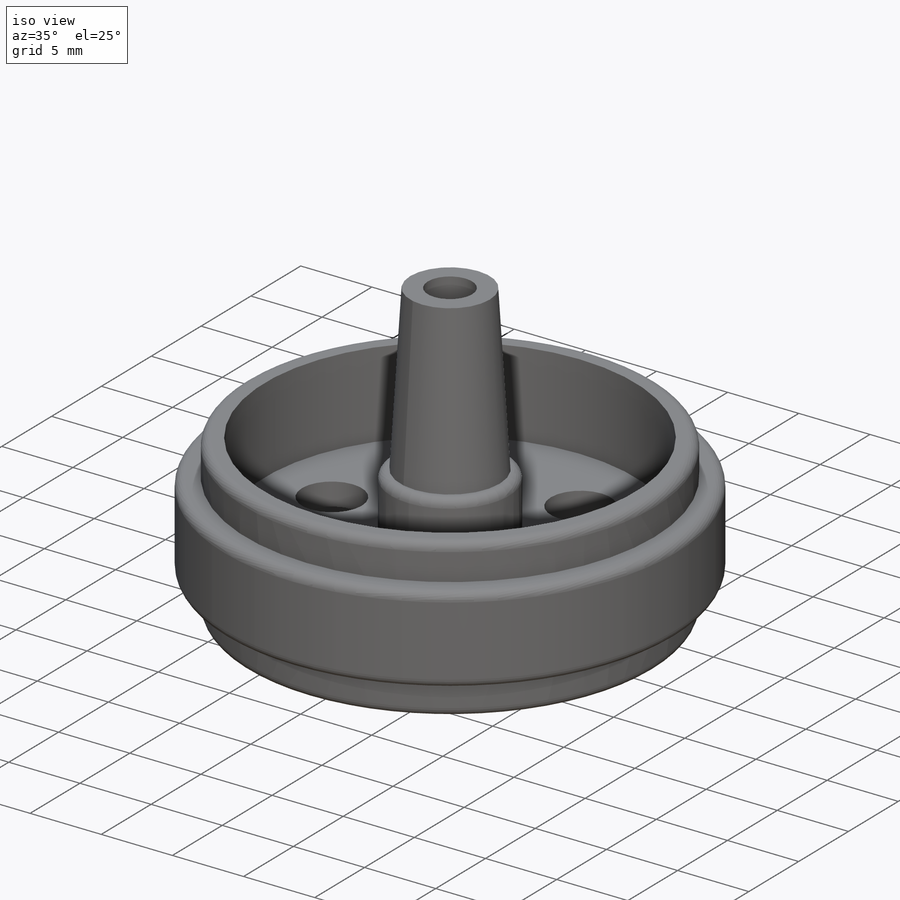
[diagram: iso view]
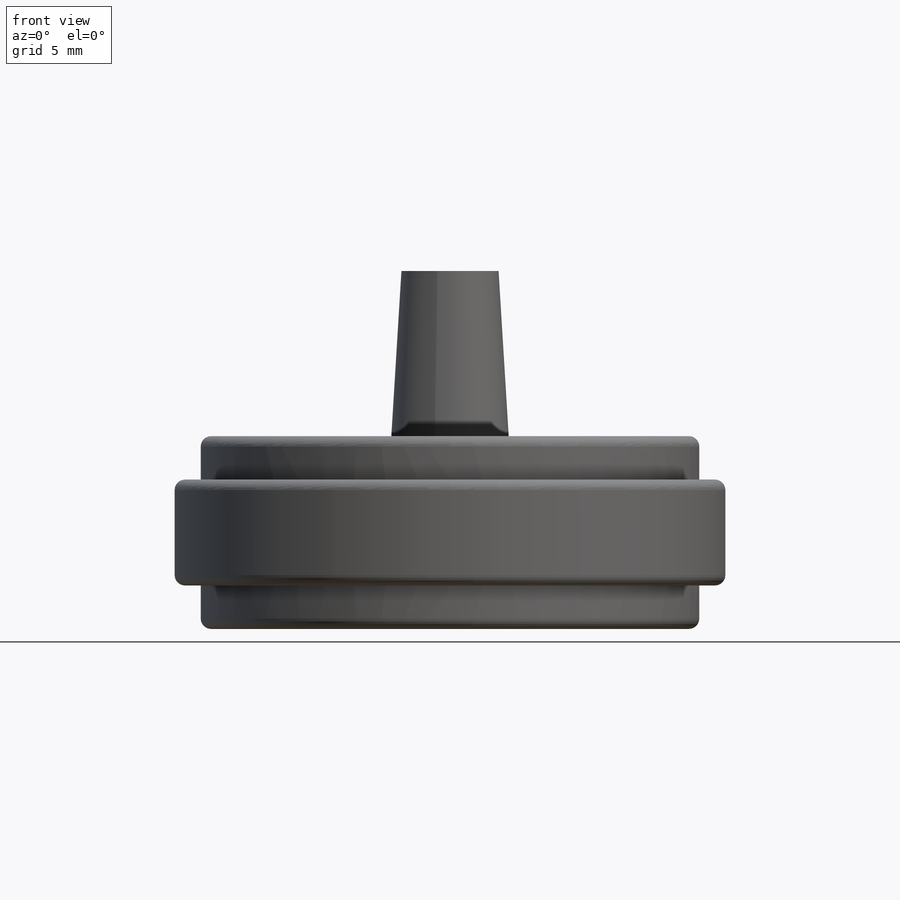
[diagram: front view]
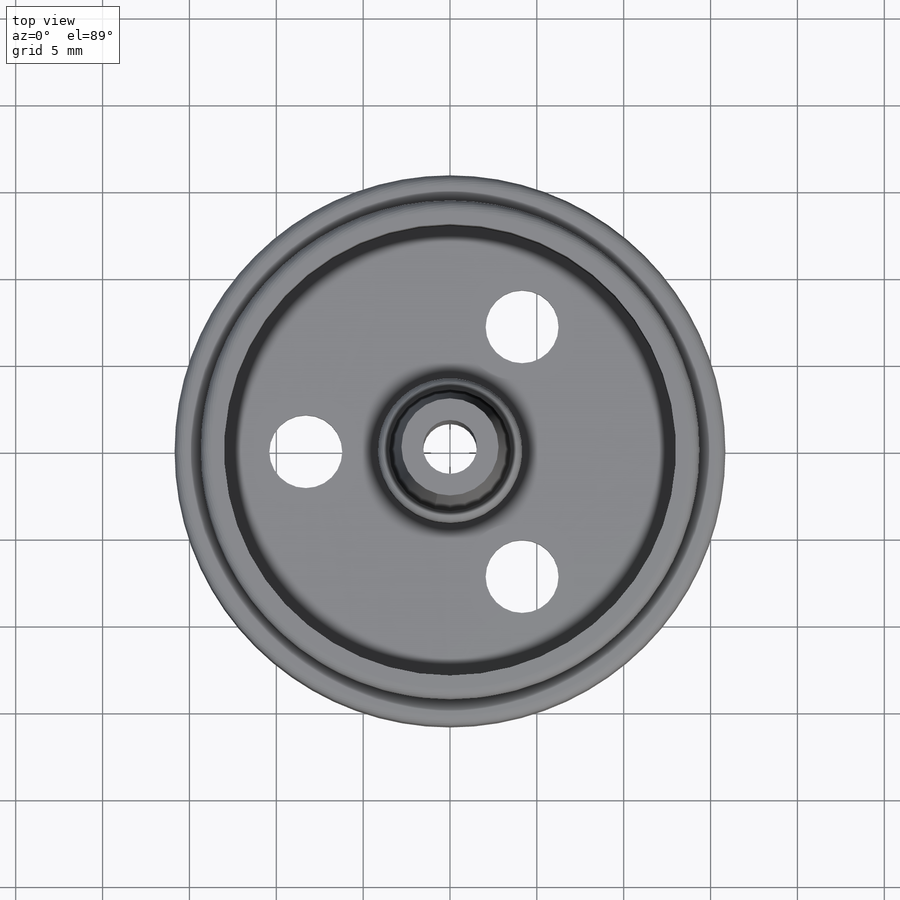
[diagram: top view]
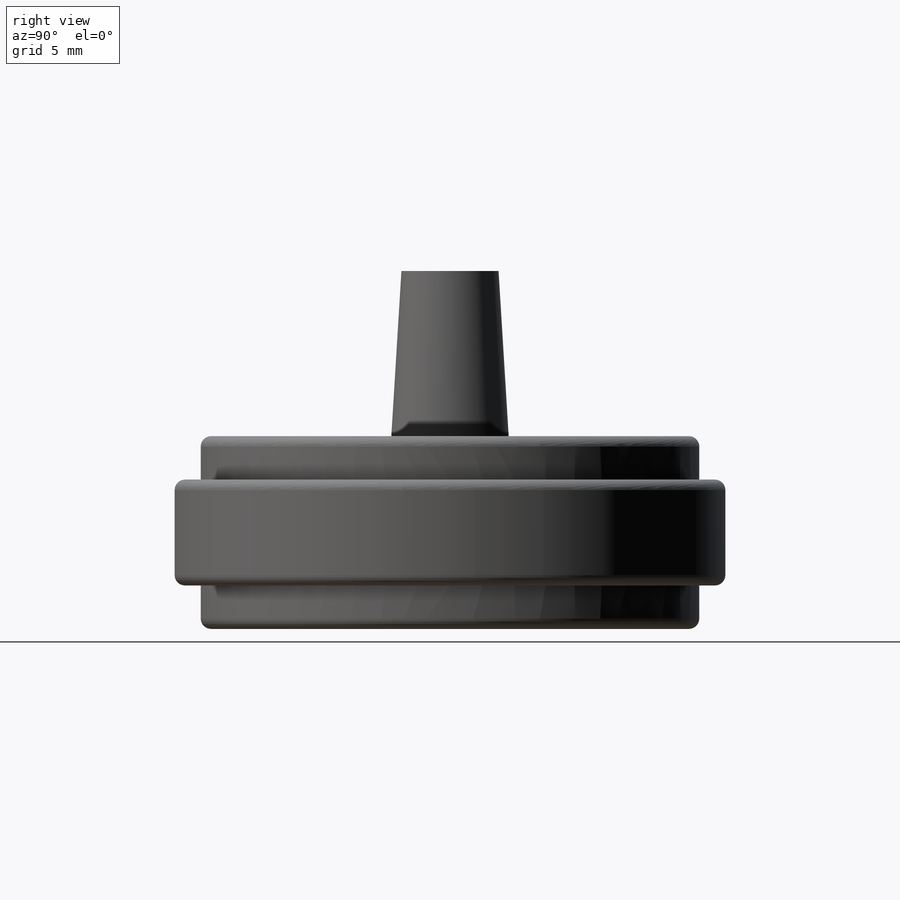
[diagram: right view]
SOLIDWORKS PART (.sldprt)
format: sldprt  version: not decoded by parser v0  size: 306,176 bytes
history: native  units: mm
features: sketch x10, extrude x5, cut_extrude x5, material x1, fillet x1 (+11 scaffold rows collapsed)
feature tree (33):
  scaffold x11  (default folders/planes/origin — collapsed)
  material  "Material <not specified>"
  sketch  "Sketch1"  dims[D1=28.7mm]
  extrude  "Boss-Extrude1"  Depth=2.5mm
  sketch  "Sketch2"  dims[D1=31.7mm]
  extrude  "Boss-Extrude2"  Depth=6.1mm
  sketch  "Sketch4"  dims[D1=28.7mm]
  extrude  "Boss-Extrude4"  Depth=2.5mm
  sketch  "Sketch5"  dims[D1=26.1mm D2=8.6mm]
  sketch  "Sketch6"  dims[D1=26.0mm]
  cut_extrude  "Cut-Extrude1"  Depth=6mm
  cut_extrude  "Cut-Extrude2"  Depth=3.5mm
  sketch  "Sketch7"  dims[D1=8.3mm]
  extrude  "Boss-Extrude5"  Depth=4mm
  sketch  "Sketch8"  dims[D1=7.0mm]
  extrude  "Boss-Extrude6"  Depth=11.5mm
  sketch  "Sketch9"  dims[D1=6.5mm]
  cut_extrude  "Cut-Extrude3"  Depth=6.65mm
  sketch  "Sketch10"  dims[D1=3.1mm]
  cut_extrude  "Cut-Extrude4"  [1 undecoded]
  fillet  "Fillet1"  Radius=0.6mm
  sketch  "Sketch11"  dims[c1.D1=4.2mm c1.D2=4.2mm c1.D5=4.2mm c1.D6=4.2mm c2.D2=8.3mm c2.D3=0.0mm c2.D5=~14.376022mm c2.D6=8.3mm c2.D4=3.0]
  cut_extrude  "Cut-Extrude5"  [1 undecoded]
decode coverage: 19 of 21 modeling features carry decoded parameters
note: ~ marks probable driven/reference dimensions
note: 2 parameter values undecoded
note: suppression state not decoded; provenance and decode notes live in map.json
